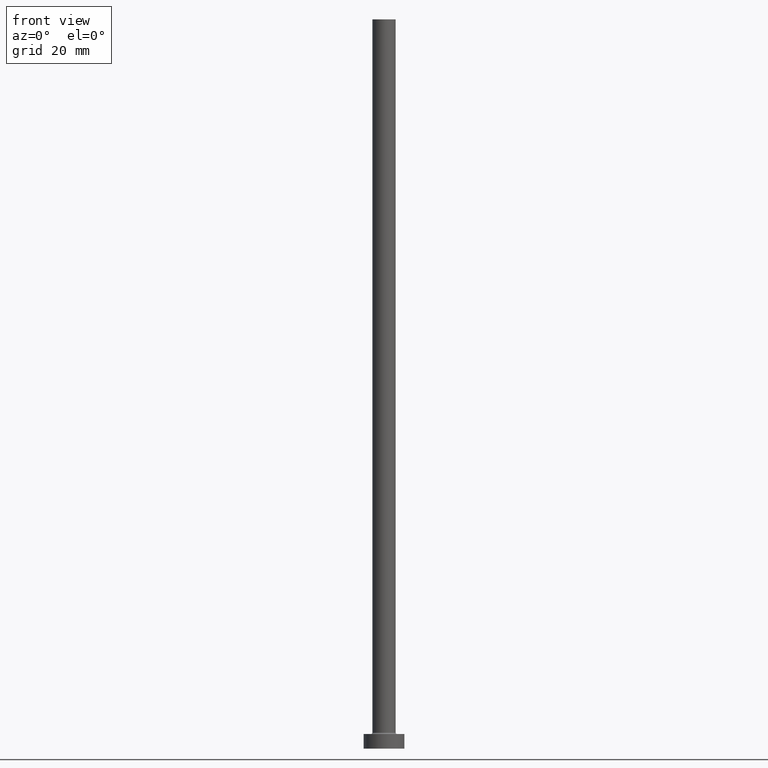
[diagram: clean part render]
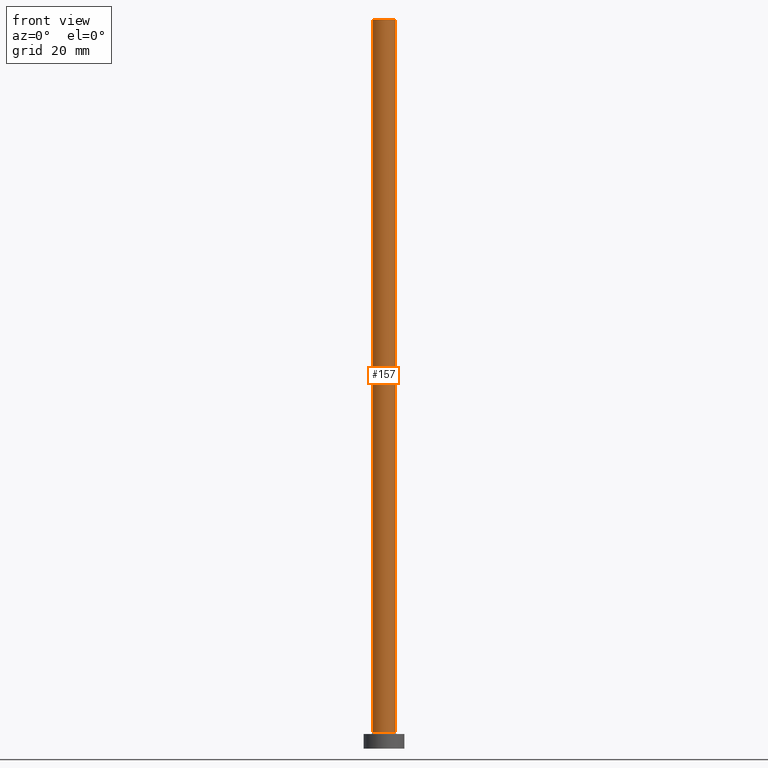
[diagram: same view with one face highlighted and labeled with its STEP entity id]
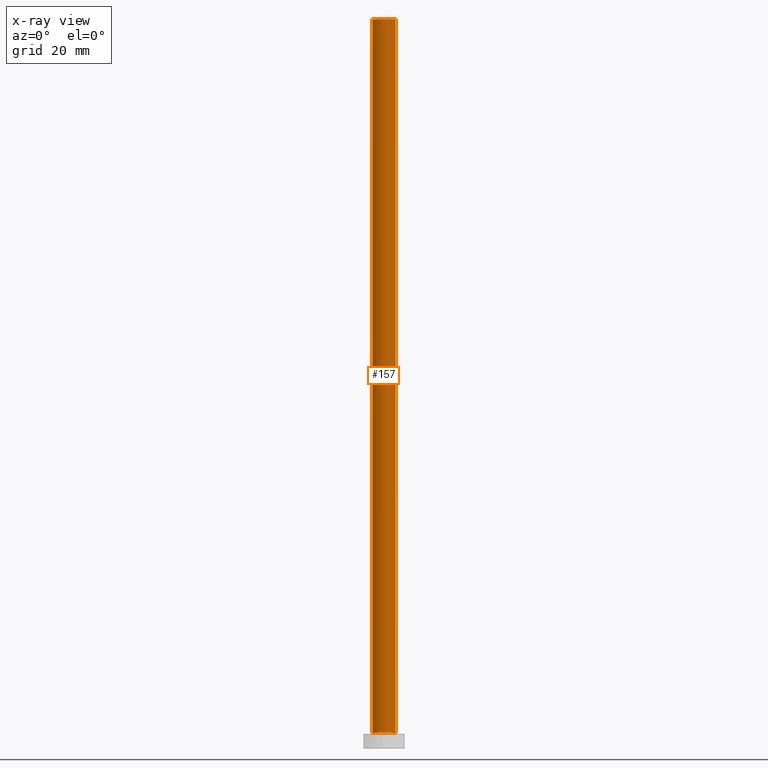
[diagram: x-ray of the same camera — body ghosted, the highlighted face saturated]
A machine part, front view. The second image highlights one B-rep face of the part: STEP entity #157.
The next image is the same camera in x-ray: the body ghosted, the highlighted face saturated — about 0% of this face is hidden behind the body in this view.
In plain terms, the highlighted cylindrical surface (edge-blend (fillet) strip) has radius 4 mm, axis along (-0, -0, -1).
Its self-contained STEP definition (entity closure, byte-faithful):
#20 = LINE ( 'NONE', #212, #416 ) ;
#26 = VERTEX_POINT ( 'NONE', #273 ) ;
#34 = VERTEX_POINT ( 'NONE', #340 ) ;
#38 = CARTESIAN_POINT ( 'NONE',  ( -4.000000000000000000, 0.000000000000000000, 250.0000000000000000 ) ) ;
#78 = DIRECTION ( 'NONE',  ( 0.000000000000000000, 0.000000000000000000, 1.000000000000000000 ) ) ;
#96 = CARTESIAN_POINT ( 'NONE',  ( 4.000000000000000000, 4.898587196589412829E-16, 250.0000000000000000 ) ) ;
#98 = CARTESIAN_POINT ( 'NONE',  ( 0.000000000000000000, 0.000000000000000000, 5.500000000000005329 ) ) ;
#105 = VERTEX_POINT ( 'NONE', #96 ) ;
#111 = DIRECTION ( 'NONE',  ( -0.000000000000000000, -0.000000000000000000, -1.000000000000000000 ) ) ;
#114 = CIRCLE ( 'NONE', #458, 4.000000000000000000 ) ;
#115 = EDGE_CURVE ( 'NONE', #260, #34, #20, .T. ) ;
#130 = DIRECTION ( 'NONE',  ( -0.000000000000000000, -0.000000000000000000, -1.000000000000000000 ) ) ;
#136 = EDGE_CURVE ( 'NONE', #34, #26, #114, .T. ) ;
#157 = ADVANCED_FACE ( 'NONE', ( #188 ), #168, .T. ) ;
#168 = CYLINDRICAL_SURFACE ( 'NONE', #359, 4.000000000000000000 ) ;
#171 = DIRECTION ( 'NONE',  ( 1.000000000000000000, 0.000000000000000000, 0.000000000000000000 ) ) ;
#188 = FACE_OUTER_BOUND ( 'NONE', #422, .T. ) ;
#202 = EDGE_CURVE ( 'NONE', #105, #26, #312, .T. ) ;
#212 = CARTESIAN_POINT ( 'NONE',  ( -4.000000000000000000, 0.000000000000000000, 250.0000000000000000 ) ) ;
#215 = AXIS2_PLACEMENT_3D ( 'NONE', #399, #78, #229 ) ;
#229 = DIRECTION ( 'NONE',  ( 1.000000000000000000, 0.000000000000000000, 0.000000000000000000 ) ) ;
#253 = ORIENTED_EDGE ( 'NONE', *, *, #136, .T. ) ;
#258 = CARTESIAN_POINT ( 'NONE',  ( 0.000000000000000000, 0.000000000000000000, 250.0000000000000000 ) ) ;
#260 = VERTEX_POINT ( 'NONE', #38 ) ;
#273 = CARTESIAN_POINT ( 'NONE',  ( 4.000000000000000000, 4.898587196589412829E-16, 5.500000000000005329 ) ) ;
#312 = LINE ( 'NONE', #449, #373 ) ;
#323 = DIRECTION ( 'NONE',  ( -0.000000000000000000, -0.000000000000000000, -1.000000000000000000 ) ) ;
#334 = ORIENTED_EDGE ( 'NONE', *, *, #115, .T. ) ;
#340 = CARTESIAN_POINT ( 'NONE',  ( -4.000000000000000000, 0.000000000000000000, 5.500000000000005329 ) ) ;
#347 = DIRECTION ( 'NONE',  ( 0.000000000000000000, 0.000000000000000000, 1.000000000000000000 ) ) ;
#350 = ORIENTED_EDGE ( 'NONE', *, *, #429, .F. ) ;
#353 = CIRCLE ( 'NONE', #215, 4.000000000000000000 ) ;
#359 = AXIS2_PLACEMENT_3D ( 'NONE', #258, #111, #380 ) ;
#373 = VECTOR ( 'NONE', #130, 1000.000000000000000 ) ;
#380 = DIRECTION ( 'NONE',  ( -1.000000000000000000, 0.000000000000000000, 0.000000000000000000 ) ) ;
#399 = CARTESIAN_POINT ( 'NONE',  ( 0.000000000000000000, 0.000000000000000000, 250.0000000000000000 ) ) ;
#416 = VECTOR ( 'NONE', #323, 1000.000000000000000 ) ;
#420 = ORIENTED_EDGE ( 'NONE', *, *, #202, .F. ) ;
#422 = EDGE_LOOP ( 'NONE', ( #420, #350, #334, #253 ) ) ;
#429 = EDGE_CURVE ( 'NONE', #260, #105, #353, .T. ) ;
#449 = CARTESIAN_POINT ( 'NONE',  ( 4.000000000000000000, 4.898587196589412829E-16, 250.0000000000000000 ) ) ;
#458 = AXIS2_PLACEMENT_3D ( 'NONE', #98, #347, #171 ) ;